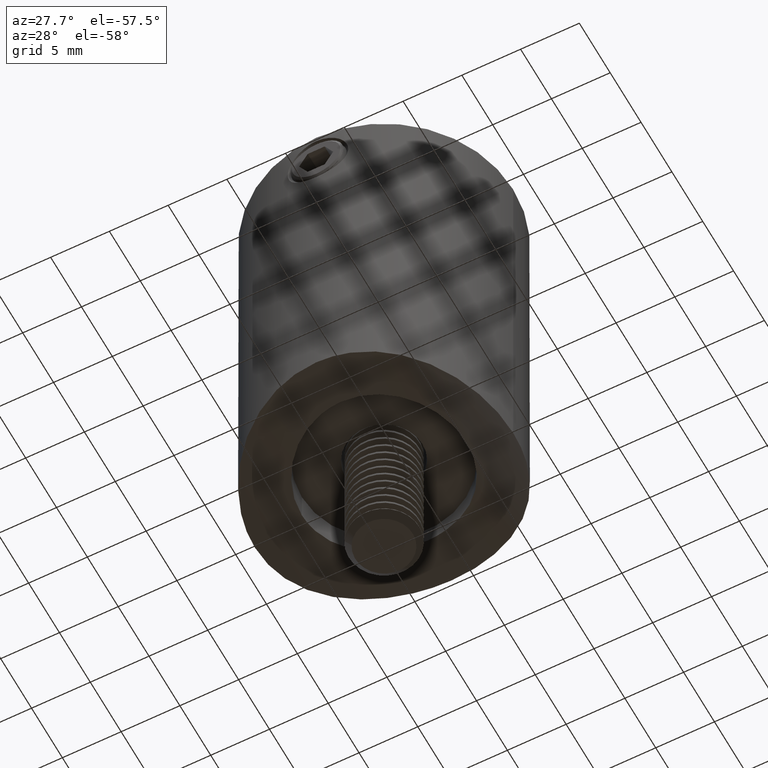
[diagram: clean part render]
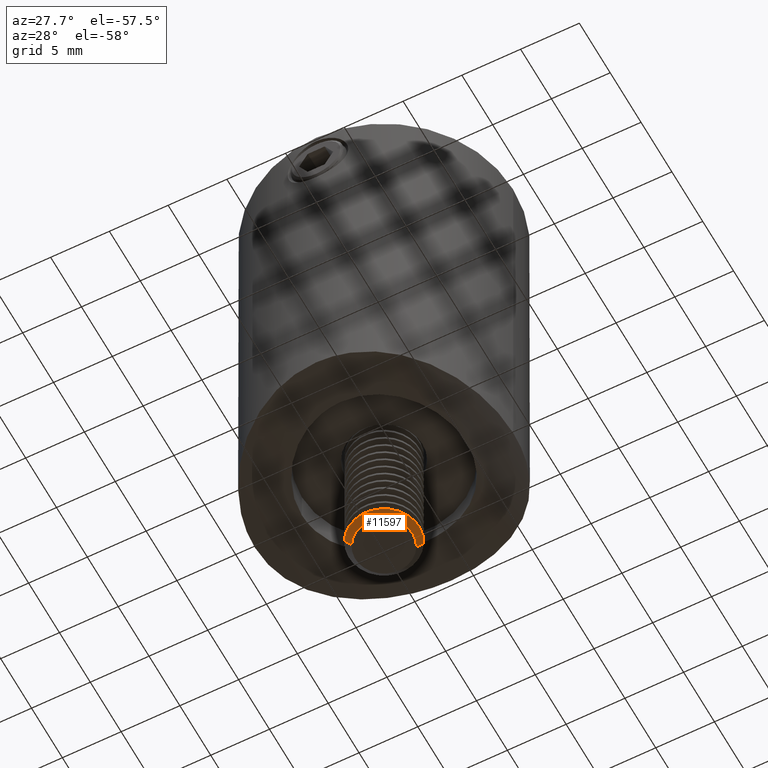
[diagram: same view with one face highlighted and labeled with its STEP entity id]
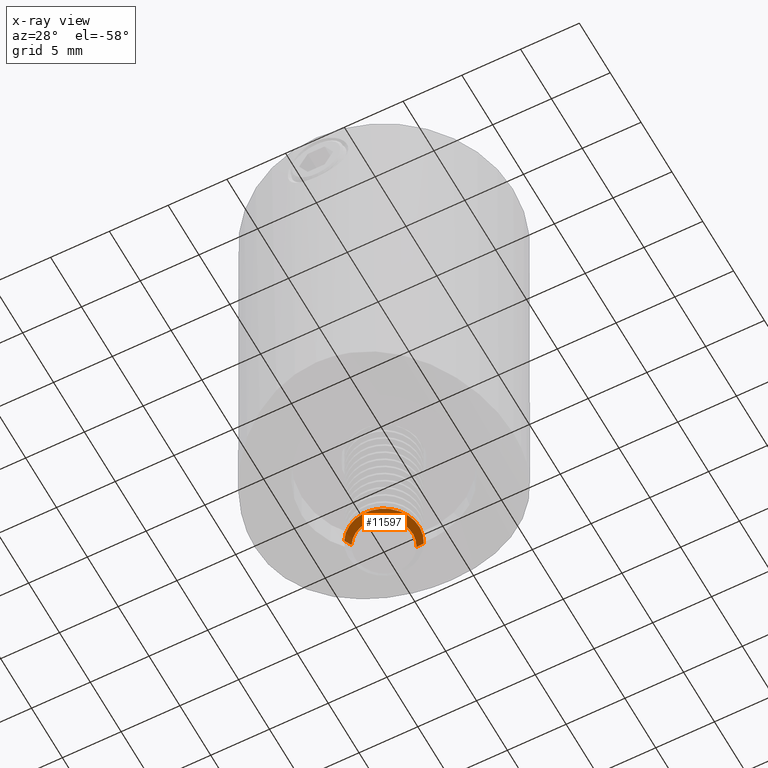
[diagram: x-ray of the same camera — body ghosted, the highlighted face saturated]
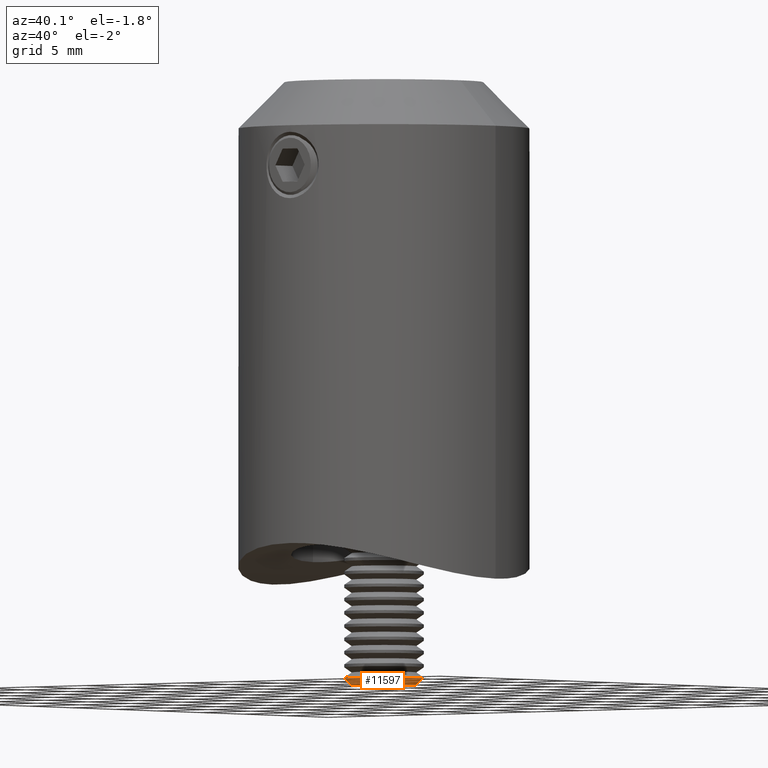
[diagram: same view with one face highlighted and labeled with its STEP entity id]
A machine part, auxiliary view. The second image highlights one B-rep face of the part: STEP entity #11597.
The next image is the same camera in x-ray: the body ghosted, the highlighted face saturated — about 0% of this face is hidden behind the body in this view.
A second angle (auxiliary view) of the same face is appended — the face is thin or edge-on in the first view.
In plain terms, the highlighted conical surface has half-angle 45 deg.
Its self-contained STEP definition (entity closure, byte-faithful):
#12 = CIRCLE ( 'NONE', #12828, 3.000000000000036415 ) ;
#1130 = VECTOR ( 'NONE', #3850, 999.9999999999998863 ) ;
#1638 = CARTESIAN_POINT ( 'NONE',  ( 21.44550000000000978, 6.695665280107601669E-15, -3.000000000000036415 ) ) ;
#2270 = EDGE_LOOP ( 'NONE', ( #7753, #21296, #21688, #2684 ) ) ;
#2684 = ORIENTED_EDGE ( 'NONE', *, *, #11015, .F. ) ;
#3826 = CARTESIAN_POINT ( 'NONE',  ( 22.00000000000001066, -5.158595772769559510E-15, 2.445500000000030649 ) ) ;
#3828 = DIRECTION ( 'NONE',  ( -1.000000000000000000, 0.000000000000000000, 0.000000000000000000 ) ) ;
#3850 = DIRECTION ( 'NONE',  ( -0.7071067811865434649, 1.578183441373126308E-15, -0.7071067811865515695 ) ) ;
#4728 = CIRCLE ( 'NONE', #21606, 2.445500000000030649 ) ;
#5071 = VERTEX_POINT ( 'NONE', #1638 ) ;
#5407 = CARTESIAN_POINT ( 'NONE',  ( 22.00000000000001066, 0.000000000000000000, 0.000000000000000000 ) ) ;
#6466 = LINE ( 'NONE', #3826, #20055 ) ;
#7753 = ORIENTED_EDGE ( 'NONE', *, *, #9521, .F. ) ;
#8561 = EDGE_CURVE ( 'NONE', #20146, #14336, #6466, .T. ) ;
#9521 = EDGE_CURVE ( 'NONE', #13088, #5071, #17654, .T. ) ;
#10389 = CARTESIAN_POINT ( 'NONE',  ( 22.00000000000001066, 5.458083147501047962E-15, -2.445500000000030649 ) ) ;
#10667 = DIRECTION ( 'NONE',  ( -0.7071067811865434649, -1.491587835749576659E-15, 0.7071067811865515695 ) ) ;
#11015 = EDGE_CURVE ( 'NONE', #5071, #14336, #12, .T. ) ;
#11133 = DIRECTION ( 'NONE',  ( 0.000000000000000000, -2.109423746787771000E-15, 1.000000000000000000 ) ) ;
#11597 = ADVANCED_FACE ( 'NONE', ( #19719 ), #15989, .T. ) ;
#12828 = AXIS2_PLACEMENT_3D ( 'NONE', #18090, #19646, #11133 ) ;
#13088 = VERTEX_POINT ( 'NONE', #13615 ) ;
#13448 = EDGE_CURVE ( 'NONE', #13088, #20146, #4728, .T. ) ;
#13454 = CARTESIAN_POINT ( 'NONE',  ( 22.00000000000001066, 0.000000000000000000, 0.000000000000000000 ) ) ;
#13615 = CARTESIAN_POINT ( 'NONE',  ( 22.00000000000001066, 6.076874213804249085E-15, -2.445500000000000007 ) ) ;
#14336 = VERTEX_POINT ( 'NONE', #19144 ) ;
#14484 = CARTESIAN_POINT ( 'NONE',  ( 22.00000000000001066, -5.158595772769559510E-15, 2.445500000000030649 ) ) ;
#15917 = DIRECTION ( 'NONE',  ( 0.000000000000000000, -2.109423746787771394E-15, 1.000000000000000000 ) ) ;
#15989 = CONICAL_SURFACE ( 'NONE', #16420, 2.445500000000030649, 0.7853981633974479459 ) ;
#16420 = AXIS2_PLACEMENT_3D ( 'NONE', #13454, #21953, #20378 ) ;
#17654 = LINE ( 'NONE', #10389, #1130 ) ;
#18090 = CARTESIAN_POINT ( 'NONE',  ( 21.44550000000000978, 0.000000000000000000, 0.000000000000000000 ) ) ;
#19144 = CARTESIAN_POINT ( 'NONE',  ( 21.44550000000000978, -6.328271240363390703E-15, 3.000000000000036415 ) ) ;
#19646 = DIRECTION ( 'NONE',  ( -1.000000000000000000, 0.000000000000000000, 0.000000000000000000 ) ) ;
#19719 = FACE_OUTER_BOUND ( 'NONE', #2270, .T. ) ;
#20055 = VECTOR ( 'NONE', #10667, 999.9999999999998863 ) ;
#20146 = VERTEX_POINT ( 'NONE', #14484 ) ;
#20378 = DIRECTION ( 'NONE',  ( 0.000000000000000000, -2.109423746787771394E-15, 1.000000000000000000 ) ) ;
#21296 = ORIENTED_EDGE ( 'NONE', *, *, #13448, .T. ) ;
#21606 = AXIS2_PLACEMENT_3D ( 'NONE', #5407, #3828, #15917 ) ;
#21688 = ORIENTED_EDGE ( 'NONE', *, *, #8561, .T. ) ;
#21953 = DIRECTION ( 'NONE',  ( -1.000000000000000000, 0.000000000000000000, 0.000000000000000000 ) ) ;